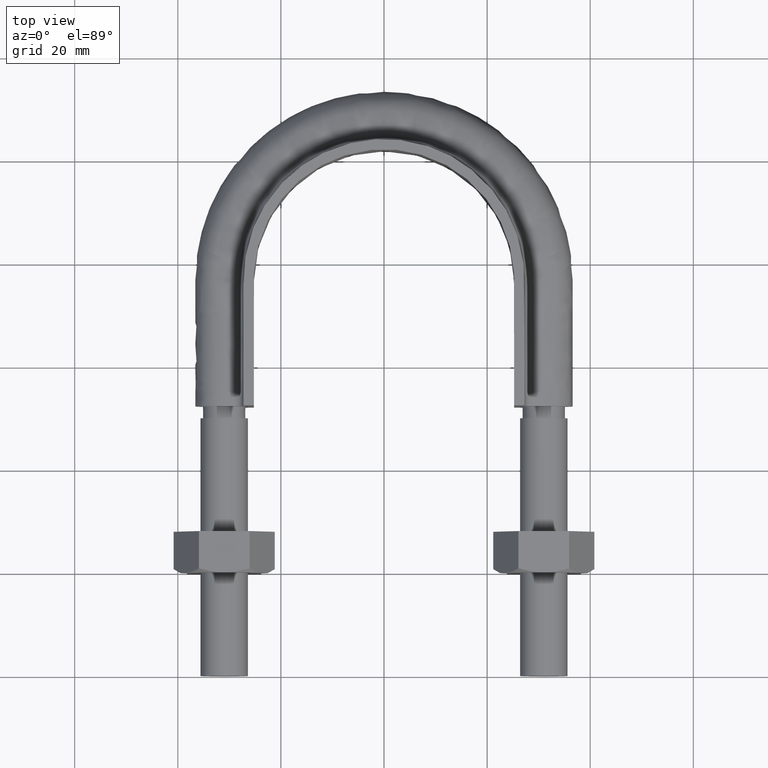
[diagram: clean part render]
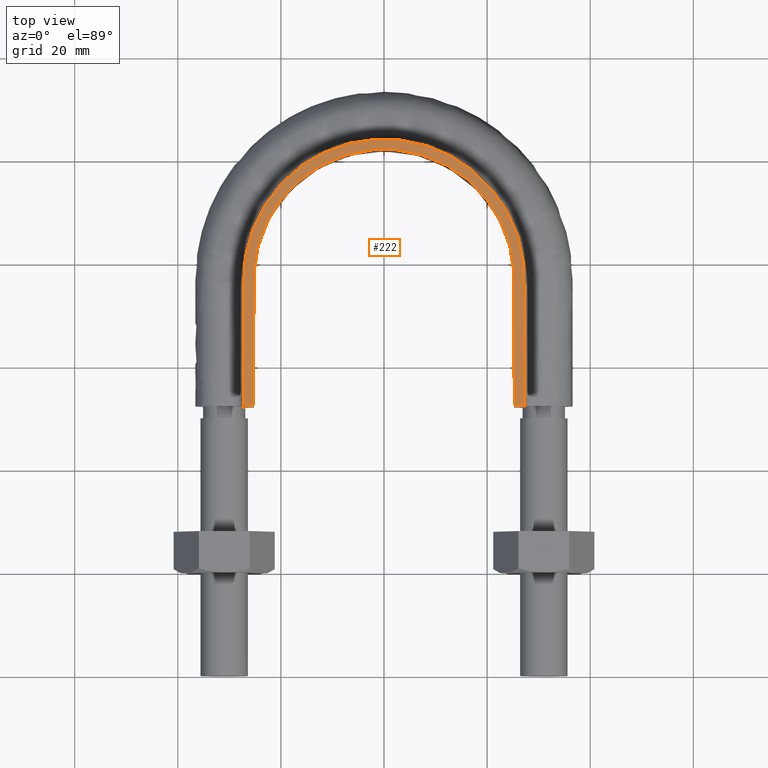
[diagram: same view with one face highlighted and labeled with its STEP entity id]
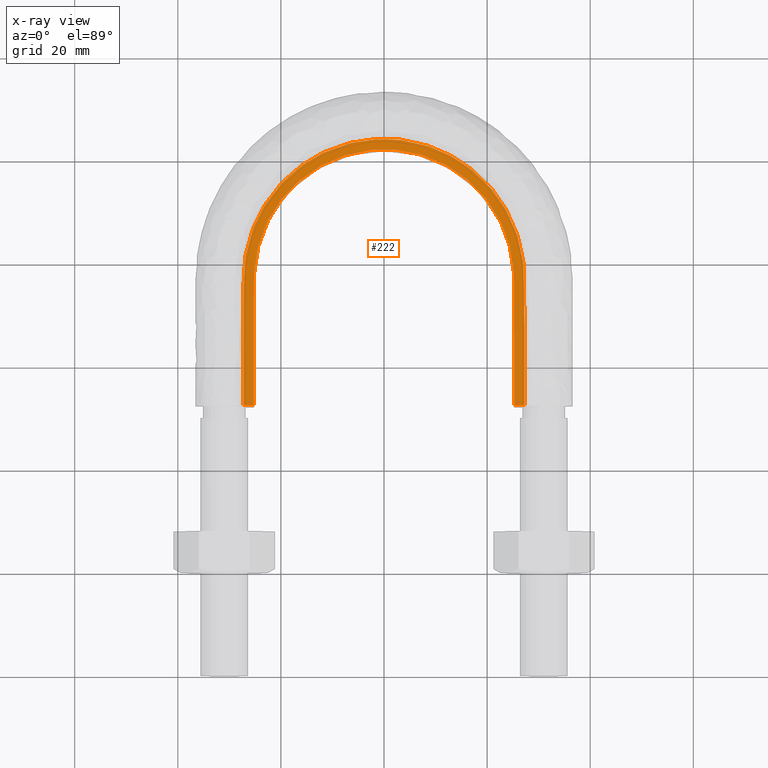
[diagram: x-ray of the same camera — body ghosted, the highlighted face saturated]
A machine part, top view. The second image highlights one B-rep face of the part: STEP entity #222.
The next image is the same camera in x-ray: the body ghosted, the highlighted face saturated — about 0% of this face is hidden behind the body in this view.
In plain terms, the highlighted planar face has unit normal (0, 0, 1).
Its self-contained STEP definition (entity closure, byte-faithful):
#222 = ADVANCED_FACE( '', ( #301 ), #302, .T. );
#301 = FACE_OUTER_BOUND( '', #469, .T. );
#302 = PLANE( '', #470 );
#469 = EDGE_LOOP( '', ( #1341, #1342, #1343, #1344 ) );
#470 = AXIS2_PLACEMENT_3D( '', #1345, #1346, #1347 );
#1341 = ORIENTED_EDGE( '', *, *, #1840, .T. );
#1342 = ORIENTED_EDGE( '', *, *, #1848, .F. );
#1343 = ORIENTED_EDGE( '', *, *, #1843, .T. );
#1344 = ORIENTED_EDGE( '', *, *, #1849, .T. );
#1345 = CARTESIAN_POINT( '', ( 40.0000000000000, 122.300000000000, 12.5000000000000 ) );
#1346 = DIRECTION( '', ( 0.000000000000000, 0.000000000000000, 1.00000000000000 ) );
#1347 = DIRECTION( '', ( 1.22460635382238E-016, 1.00000000000000, 0.000000000000000 ) );
#1840 = EDGE_CURVE( '', #1992, #1989, #1993, .T. );
#1843 = EDGE_CURVE( '', #1997, #1998, #1999, .T. );
#1848 = EDGE_CURVE( '', #1997, #1989, #2006, .T. );
#1849 = EDGE_CURVE( '', #1998, #1992, #2007, .F. );
#1989 = VERTEX_POINT( '', #2235 );
#1992 = VERTEX_POINT( '', #2239 );
#1993 = LINE( '', #2240, #2241 );
#1997 = VERTEX_POINT( '', #2276 );
#1998 = VERTEX_POINT( '', #2277 );
#1999 = LINE( '', #2278, #2279 );
#2006 = B_SPLINE_CURVE_WITH_KNOTS( '', 3, ( #2334, #2335, #2336, #2337, #2338, #2339, #2340, #2341, #2342, #2343, #2344, #2345, #2346, #2347, #2348, #2349, #2350, #2351, #2352, #2353, #2354, #2355, #2356, #2357, #2358, #2359, #2360, #2361, #2362, #2363, #2364, #2365, #2366, #2367, #2368, #2369, #2370, #2371, #2372, #2373, #2374, #2375, #2376, #2377, #2378, #2379, #2380, #2381, #2382, #2383, #2384, #2385, #2386, #2387, #2388, #2389, #2390, #2391, #2392, #2393, #2394, #2395, #2396, #2397, #2398, #2399, #2400, #2401, #2402, #2403 ), .UNSPECIFIED., .F., .F., ( 4, 1, 2, 2, 2, 2, 2, 2, 2, 2, 2, 2, 2, 2, 2, 2, 2, 2, 2, 2, 2, 2, 2, 2, 2, 2, 2, 2, 2, 2, 2, 2, 2, 2, 1, 4 ), ( 0.000000000000000, 0.0161147613349202, 0.0241721420023803, 0.0251793145858128, 0.0261864871692453, 0.0282008323361104, 0.0322295226698406, 0.0342438678367057, 0.0362582130035708, 0.0402869033373010, 0.0423012485041662, 0.0443155936710313, 0.0483442840047615, 0.0503586291716266, 0.0523729743384917, 0.0564016646722219, 0.0584160098390870, 0.0604303550059521, 0.0644590453396822, 0.0684877356734124, 0.0725164260071426, 0.0765451163408728, 0.0785594615077379, 0.0805738066746030, 0.0846024970083331, 0.0866168421751982, 0.0886311873420633, 0.0926598776757935, 0.0946742228426586, 0.0966885680095237, 0.100717258343254, 0.102731603510119, 0.103738776093552, 0.104745948676984, 0.112803329344445, 0.128918090679367 ), .UNSPECIFIED. );
#2007 = B_SPLINE_CURVE_WITH_KNOTS( '', 3, ( #2404, #2405, #2406, #2407, #2408, #2409, #2410, #2411, #2412, #2413, #2414, #2415, #2416, #2417, #2418, #2419, #2420 ), .UNSPECIFIED., .F., .F., ( 4, 3, 1, 1, 1, 1, 1, 1, 1, 3, 4 ), ( 0.0977859778597787, 1.00000000000000, 1.50000000000000, 2.00000000000000, 3.00000000000000, 4.00000000000000, 5.00000000000000, 6.00000000000000, 6.50000000000000, 7.00000000000000, 7.90221402214022 ), .UNSPECIFIED. );
#2235 = CARTESIAN_POINT( '', ( -25.2500000000000, 52.3000000000000, 12.5000000000000 ) );
#2239 = CARTESIAN_POINT( '', ( -27.2500000000000, 52.3000000000000, 12.5000000000000 ) );
#2240 = CARTESIAN_POINT( '', ( -39.9999999999999, 52.3000000000000, 12.5000000000000 ) );
#2241 = VECTOR( '', #2879, 1000.00000000000 );
#2276 = CARTESIAN_POINT( '', ( 25.2500000000000, 52.3000000000000, 12.5000000000000 ) );
#2277 = CARTESIAN_POINT( '', ( 27.2500000000000, 52.3000000000000, 12.5000000000000 ) );
#2278 = CARTESIAN_POINT( '', ( -39.9999999999999, 52.3000000000000, 12.5000000000000 ) );
#2279 = VECTOR( '', #2881, 1000.00000000000 );
#2334 = CARTESIAN_POINT( '', ( 25.2500000000000, 52.3000000000000, 12.5000000000000 ) );
#2335 = CARTESIAN_POINT( '', ( 25.2500000000000, 57.6715895133363, 12.5000000000000 ) );
#2336 = CARTESIAN_POINT( '', ( 25.2500000000000, 65.7289737833407, 12.5000000000000 ) );
#2337 = CARTESIAN_POINT( '', ( 25.2500000000000, 73.7863580533451, 12.5000000000000 ) );
#2338 = CARTESIAN_POINT( '', ( 25.2500000000000, 76.8078771545967, 12.5000000000000 ) );
#2339 = CARTESIAN_POINT( '', ( 25.2491150649023, 77.1436006623561, 12.5000000000000 ) );
#2340 = CARTESIAN_POINT( '', ( 25.2290970638442, 77.8150304218350, 12.5000000000000 ) );
#2341 = CARTESIAN_POINT( '', ( 25.2121935151836, 78.1507925719534, 12.5000000000000 ) );
#2342 = CARTESIAN_POINT( '', ( 25.1416304541618, 79.1523366022387, 12.5000000000000 ) );
#2343 = CARTESIAN_POINT( '', ( 25.0681478926232, 79.8143363579043, 12.5000000000000 ) );
#2344 = CARTESIAN_POINT( '', ( 24.7718338888331, 81.7839912183415, 12.5000000000000 ) );
#2345 = CARTESIAN_POINT( '', ( 24.4738662146173, 83.0754592042979, 12.5000000000000 ) );
#2346 = CARTESIAN_POINT( '', ( 23.8748800577902, 84.9799073066209, 12.5000000000000 ) );
#2347 = CARTESIAN_POINT( '', ( 23.6493715092706, 85.6100803220541, 12.5000000000000 ) );
#2348 = CARTESIAN_POINT( '', ( 23.1466852002289, 86.8554279332746, 12.5000000000000 ) );
#2349 = CARTESIAN_POINT( '', ( 22.8722634989541, 87.4639607404973, 12.5000000000000 ) );
#2350 = CARTESIAN_POINT( '', ( 21.9809247319282, 89.2478481492567, 12.5000000000000 ) );
#2351 = CARTESIAN_POINT( '', ( 21.2954434150302, 90.3811911382233, 12.5000000000000 ) );
#2352 = CARTESIAN_POINT( '', ( 20.1327216169348, 91.9987930765122, 12.5000000000000 ) );
#2353 = CARTESIAN_POINT( '', ( 19.7227502870593, 92.5242700873752, 12.5000000000000 ) );
#2354 = CARTESIAN_POINT( '', ( 18.8572951167686, 93.5473370698948, 12.5000000000000 ) );
#2355 = CARTESIAN_POINT( '', ( 18.4032128723607, 94.0429041540677, 12.5000000000000 ) );
#2356 = CARTESIAN_POINT( '', ( 16.9964012871805, 95.4628432392527, 12.5000000000000 ) );
#2357 = CARTESIAN_POINT( '', ( 15.9927974475019, 96.3290825642789, 12.5000000000000 ) );
#2358 = CARTESIAN_POINT( '', ( 14.3887252075774, 97.5077730242737, 12.5000000000000 ) );
#2359 = CARTESIAN_POINT( '', ( 13.8374893035044, 97.8804352136555, 12.5000000000000 ) );
#2360 = CARTESIAN_POINT( '', ( 12.7006376573711, 98.5837132519596, 12.5000000000000 ) );
#2361 = CARTESIAN_POINT( '', ( 12.1131960831801, 98.9148256353267, 12.5000000000000 ) );
#2362 = CARTESIAN_POINT( '', ( 10.3299183650717, 99.8271556474527, 12.5000000000000 ) );
#2363 = CARTESIAN_POINT( '', ( 9.10454318132633, 100.334617775915, 12.5000000000000 ) );
#2364 = CARTESIAN_POINT( '', ( 7.21408375439680, 100.951263101214, 12.5000000000000 ) );
#2365 = CARTESIAN_POINT( '', ( 6.57514143236493, 101.132564627325, 12.5000000000000 ) );
#2366 = CARTESIAN_POINT( '', ( 5.27940659805710, 101.445923942251, 12.5000000000000 ) );
#2367 = CARTESIAN_POINT( '', ( 4.61971700823950, 101.578396874576, 12.5000000000000 ) );
#2368 = CARTESIAN_POINT( '', ( 2.63611969315322, 101.895445145226, 12.5000000000000 ) );
#2369 = CARTESIAN_POINT( '', ( 1.31266002970451, 102.000633761379, 12.5000000000000 ) );
#2370 = CARTESIAN_POINT( '', ( -1.33637517265706, 101.999360539331, 12.5000000000000 ) );
#2371 = CARTESIAN_POINT( '', ( -2.66195040312101, 101.892929555190, 12.5000000000000 ) );
#2372 = CARTESIAN_POINT( '', ( -5.31524513152497, 101.465577087233, 12.5000000000000 ) );
#2373 = CARTESIAN_POINT( '', ( -6.60804809859939, 101.150283396415, 12.5000000000000 ) );
#2374 = CARTESIAN_POINT( '', ( -9.12743285415869, 100.325787539108, 12.5000000000000 ) );
#2375 = CARTESIAN_POINT( '', ( -10.3542818357591, 99.8165440063398, 12.5000000000000 ) );
#2376 = CARTESIAN_POINT( '', ( -12.1424796987351, 98.8988850748786, 12.5000000000000 ) );
#2377 = CARTESIAN_POINT( '', ( -12.7280055425883, 98.5676964580208, 12.5000000000000 ) );
#2378 = CARTESIAN_POINT( '', ( -13.8604800842026, 97.8652576482499, 12.5000000000000 ) );
#2379 = CARTESIAN_POINT( '', ( -14.4101186139773, 97.4928572994793, 12.5000000000000 ) );
#2380 = CARTESIAN_POINT( '', ( -16.0108457131090, 96.3141649807461, 12.5000000000000 ) );
#2381 = CARTESIAN_POINT( '', ( -17.0141423168656, 95.4468877264441, 12.5000000000000 ) );
#2382 = CARTESIAN_POINT( '', ( -18.4223735858236, 94.0225597074450, 12.5000000000000 ) );
#2383 = CARTESIAN_POINT( '', ( -18.8770948955632, 93.5250404115609, 12.5000000000000 ) );
#2384 = CARTESIAN_POINT( '', ( -19.7389494790014, 92.5039645699892, 12.5000000000000 ) );
#2385 = CARTESIAN_POINT( '', ( -20.1475791510492, 91.9791755244843, 12.5000000000000 ) );
#2386 = CARTESIAN_POINT( '', ( -21.3073074555425, 90.3625229527023, 12.5000000000000 ) );
#2387 = CARTESIAN_POINT( '', ( -21.9921630158331, 89.2283213519145, 12.5000000000000 ) );
#2388 = CARTESIAN_POINT( '', ( -22.8834304923140, 87.4400868445454, 12.5000000000000 ) );
#2389 = CARTESIAN_POINT( '', ( -23.1588924008411, 86.8272301152319, 12.5000000000000 ) );
#2390 = CARTESIAN_POINT( '', ( -23.6592299459395, 85.5835210098059, 12.5000000000000 ) );
#2391 = CARTESIAN_POINT( '', ( -23.8832275832711, 84.9554763413572, 12.5000000000000 ) );
#2392 = CARTESIAN_POINT( '', ( -24.4794340907129, 83.0534169914868, 12.5000000000000 ) );
#2393 = CARTESIAN_POINT( '', ( -24.7765070779004, 81.7616308298702, 12.5000000000000 ) );
#2394 = CARTESIAN_POINT( '', ( -25.0713912401283, 79.7883013507101, 12.5000000000000 ) );
#2395 = CARTESIAN_POINT( '', ( -25.1443839992401, 79.1245403228044, 12.5000000000000 ) );
#2396 = CARTESIAN_POINT( '', ( -25.2139758381743, 78.1194620904532, 12.5000000000000 ) );
#2397 = CARTESIAN_POINT( '', ( -25.2304218529115, 77.7839664637430, 12.5000000000000 ) );
#2398 = CARTESIAN_POINT( '', ( -25.2495794061181, 77.1133743490591, 12.5000000000000 ) );
#2399 = CARTESIAN_POINT( '', ( -25.2500000000000, 76.7780593381652, 12.5000000000000 ) );
#2400 = CARTESIAN_POINT( '', ( -25.2500000000000, 73.7602164060627, 12.5000000000000 ) );
#2401 = CARTESIAN_POINT( '', ( -25.2500000000000, 65.7126352537892, 12.5000000000000 ) );
#2402 = CARTESIAN_POINT( '', ( -25.2500000000000, 57.6650541015157, 12.5000000000000 ) );
#2403 = CARTESIAN_POINT( '', ( -25.2500000000000, 52.3000000000000, 12.5000000000000 ) );
#2404 = CARTESIAN_POINT( '', ( -27.2500000000000, 52.3000000000000, 12.5000000000000 ) );
#2405 = CARTESIAN_POINT( '', ( -27.2500000000000, 60.4500000000000, 12.5000000000000 ) );
#2406 = CARTESIAN_POINT( '', ( -27.2500000000000, 68.6000000000000, 12.5000000000000 ) );
#2407 = CARTESIAN_POINT( '', ( -27.2500000000000, 76.7500000000000, 12.5000000000000 ) );
#2408 = CARTESIAN_POINT( '', ( -27.2500000000000, 79.1191567773597, 12.5000000000000 ) );
#2409 = CARTESIAN_POINT( '', ( -26.6117168448872, 83.8841292069730, 12.5000000000000 ) );
#2410 = CARTESIAN_POINT( '', ( -22.9630708598582, 92.7501478795154, 12.5000000000000 ) );
#2411 = CARTESIAN_POINT( '', ( -14.2616618337290, 101.453023049496, 12.5000000000000 ) );
#2412 = CARTESIAN_POINT( '', ( 2.02644330604855E-014, 105.273488475252, 12.5000000000000 ) );
#2413 = CARTESIAN_POINT( '', ( 14.2616618337290, 101.453023049496, 12.5000000000000 ) );
#2414 = CARTESIAN_POINT( '', ( 22.9630708598583, 92.7501478795154, 12.5000000000000 ) );
#2415 = CARTESIAN_POINT( '', ( 26.6117168448872, 83.8841292069730, 12.5000000000000 ) );
#2416 = CARTESIAN_POINT( '', ( 27.2500000000000, 79.1191567773597, 12.5000000000000 ) );
#2417 = CARTESIAN_POINT( '', ( 27.2500000000000, 76.7500000000000, 12.5000000000000 ) );
#2418 = CARTESIAN_POINT( '', ( 27.2500000000000, 68.6000000000000, 12.5000000000000 ) );
#2419 = CARTESIAN_POINT( '', ( 27.2500000000000, 60.4500000000000, 12.5000000000000 ) );
#2420 = CARTESIAN_POINT( '', ( 27.2500000000000, 52.3000000000000, 12.5000000000000 ) );
#2879 = DIRECTION( '', ( 1.00000000000000, -1.22460635382238E-016, 0.000000000000000 ) );
#2881 = DIRECTION( '', ( 1.00000000000000, -1.22460635382238E-016, 0.000000000000000 ) );